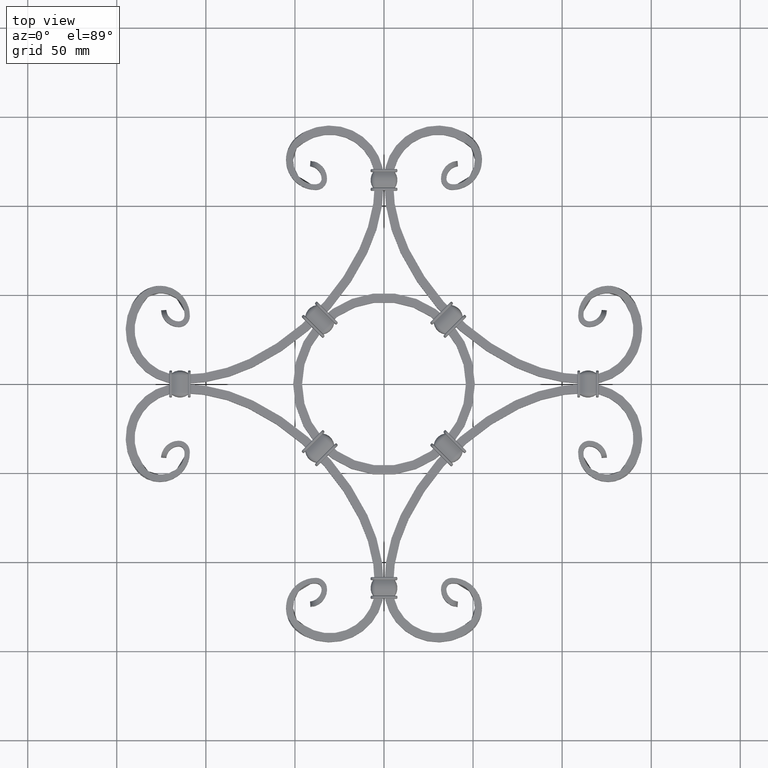
[diagram: clean part render]
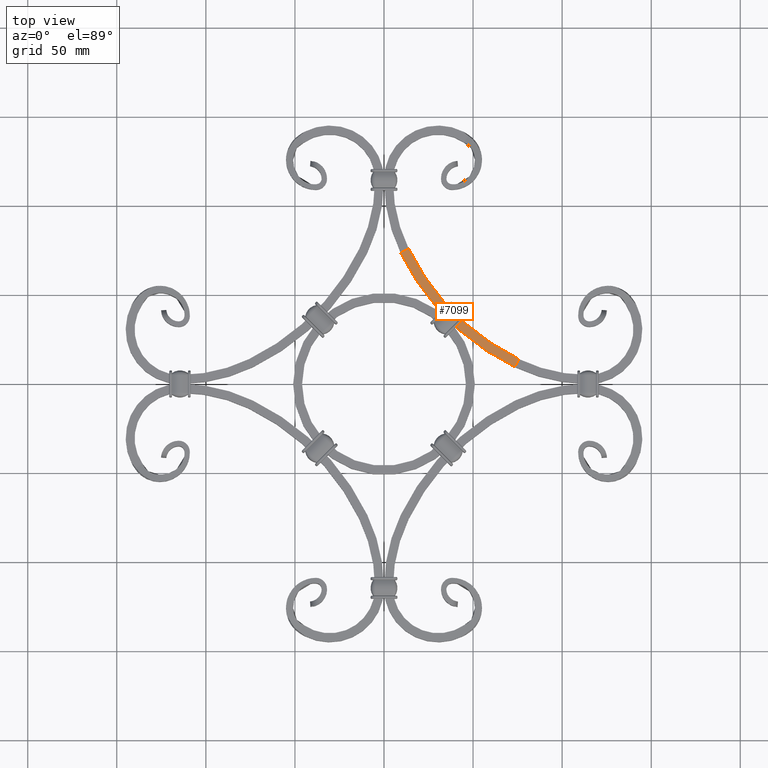
[diagram: same view with one face highlighted and labeled with its STEP entity id]
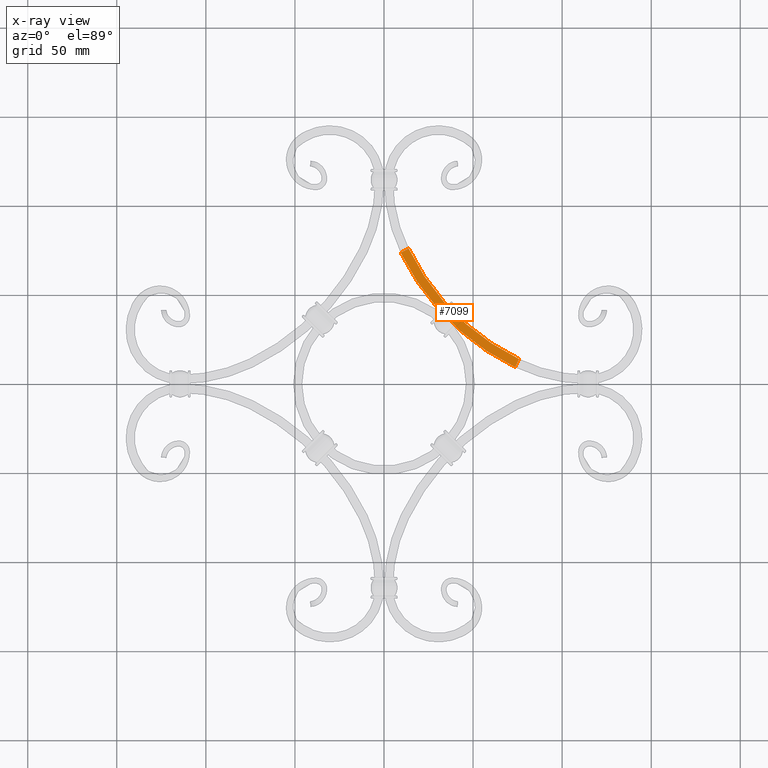
[diagram: x-ray of the same camera — body ghosted, the highlighted face saturated]
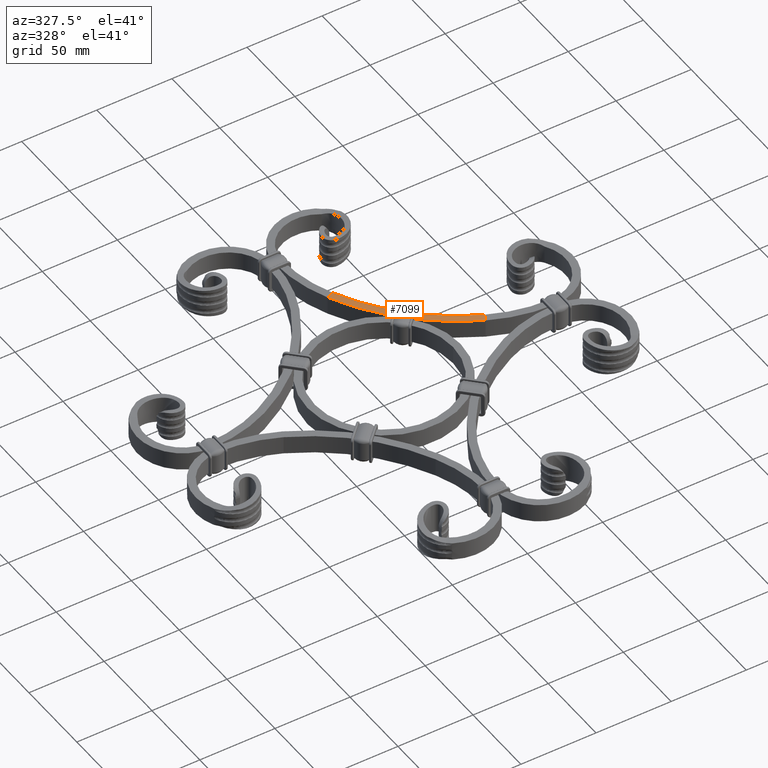
[diagram: same view with one face highlighted and labeled with its STEP entity id]
A machine part, top view. The second image highlights one B-rep face of the part: STEP entity #7099.
The next image is the same camera in x-ray: the body ghosted, the highlighted face saturated — about 0% of this face is hidden behind the body in this view.
A second angle (auxiliary view) of the same face is appended — the face is thin or edge-on in the first view.
In plain terms, the highlighted planar face has unit normal (0, 0, -1).
Its self-contained STEP definition (entity closure, byte-faithful):
#1951 = FACE_OUTER_BOUND ( 'NONE', #20266, .T. ) ;
#7099 = ADVANCED_FACE ( 'NONE', ( #1951 ), #44560, .F. ) ;
#7796 = EDGE_CURVE ( 'NONE', #56915, #37806, #28709, .T. ) ;
#8861 = CARTESIAN_POINT ( 'NONE',  ( 9.381487006249189520, 73.59507978403622985, 6.000000000000000000 ) ) ;
#11952 = DIRECTION ( 'NONE',  ( 0.000000000000000000, 0.000000000000000000, -1.000000000000000000 ) ) ;
#12256 = ORIENTED_EDGE ( 'NONE', *, *, #23700, .T. ) ;
#13355 = CIRCLE ( 'NONE', #59181, 138.1787558030673324 ) ;
#13791 = AXIS2_PLACEMENT_3D ( 'NONE', #16832, #11952, #21297 ) ;
#15321 = CARTESIAN_POINT ( 'NONE',  ( 9.381487006249196625, 73.59507978403622985, 6.000000000000000000 ) ) ;
#16409 = ORIENTED_EDGE ( 'NONE', *, *, #7796, .F. ) ;
#16832 = CARTESIAN_POINT ( 'NONE',  ( 9.381487006249196625, 73.59507978403625827, 6.000000000000000000 ) ) ;
#18928 = DIRECTION ( 'NONE',  ( 0.4354830158299308196, 0.9001969467420272153, 0.000000000000000000 ) ) ;
#20266 = EDGE_LOOP ( 'NONE', ( #16409, #47401, #46945, #12256 ) ) ;
#21297 = DIRECTION ( 'NONE',  ( 1.000000000000000000, 0.000000000000000000, 0.000000000000000000 ) ) ;
#22644 = CARTESIAN_POINT ( 'NONE',  ( 133.7695810847829989, 133.7695810847827147, 6.000000000000000000 ) ) ;
#23469 = EDGE_CURVE ( 'NONE', #29574, #46716, #13355, .T. ) ;
#23700 = EDGE_CURVE ( 'NONE', #46716, #37806, #57504, .T. ) ;
#24648 = DIRECTION ( 'NONE',  ( 0.000000000000000000, -0.000000000000000000, 1.000000000000000000 ) ) ;
#28709 = CIRCLE ( 'NONE', #54139, 133.1787558030673040 ) ;
#29574 = VERTEX_POINT ( 'NONE', #8861 ) ;
#30740 = CARTESIAN_POINT ( 'NONE',  ( 13.88247173995935135, 75.77249486318585525, 6.000000000000000000 ) ) ;
#30912 = DIRECTION ( 'NONE',  ( 0.9001969467420305460, 0.4354830158299238807, 0.000000000000000000 ) ) ;
#31750 = DIRECTION ( 'NONE',  ( 0.000000000000000000, -0.000000000000000000, 1.000000000000000000 ) ) ;
#32101 = CARTESIAN_POINT ( 'NONE',  ( 73.59507978403630091, 9.381487006248608651, 6.000000000000000000 ) ) ;
#35778 = VECTOR ( 'NONE', #30912, 1000.000000000000114 ) ;
#36182 = DIRECTION ( 'NONE',  ( -0.9001969467420302129, -0.4354830158299246579, 0.000000000000000000 ) ) ;
#37806 = VERTEX_POINT ( 'NONE', #42233 ) ;
#39193 = DIRECTION ( 'NONE',  ( -0.9001969467420303239, -0.4354830158299245468, 0.000000000000000000 ) ) ;
#42233 = CARTESIAN_POINT ( 'NONE',  ( 75.77249486318596894, 13.88247173995874562, 6.000000000000000000 ) ) ;
#43015 = VECTOR ( 'NONE', #18928, 1000.000000000000000 ) ;
#44560 = PLANE ( 'NONE',  #13791 ) ;
#46716 = VERTEX_POINT ( 'NONE', #53695 ) ;
#46945 = ORIENTED_EDGE ( 'NONE', *, *, #23469, .T. ) ;
#47283 = EDGE_CURVE ( 'NONE', #29574, #56915, #48188, .T. ) ;
#47401 = ORIENTED_EDGE ( 'NONE', *, *, #47283, .F. ) ;
#48188 = LINE ( 'NONE', #15321, #35778 ) ;
#52790 = CARTESIAN_POINT ( 'NONE',  ( 133.7695810847829989, 133.7695810847827147, 6.000000000000000000 ) ) ;
#53695 = CARTESIAN_POINT ( 'NONE',  ( 73.59507978403630091, 9.381487006248601546, 6.000000000000000000 ) ) ;
#54139 = AXIS2_PLACEMENT_3D ( 'NONE', #22644, #31750, #36182 ) ;
#56915 = VERTEX_POINT ( 'NONE', #30740 ) ;
#57504 = LINE ( 'NONE', #32101, #43015 ) ;
#59181 = AXIS2_PLACEMENT_3D ( 'NONE', #52790, #24648, #39193 ) ;